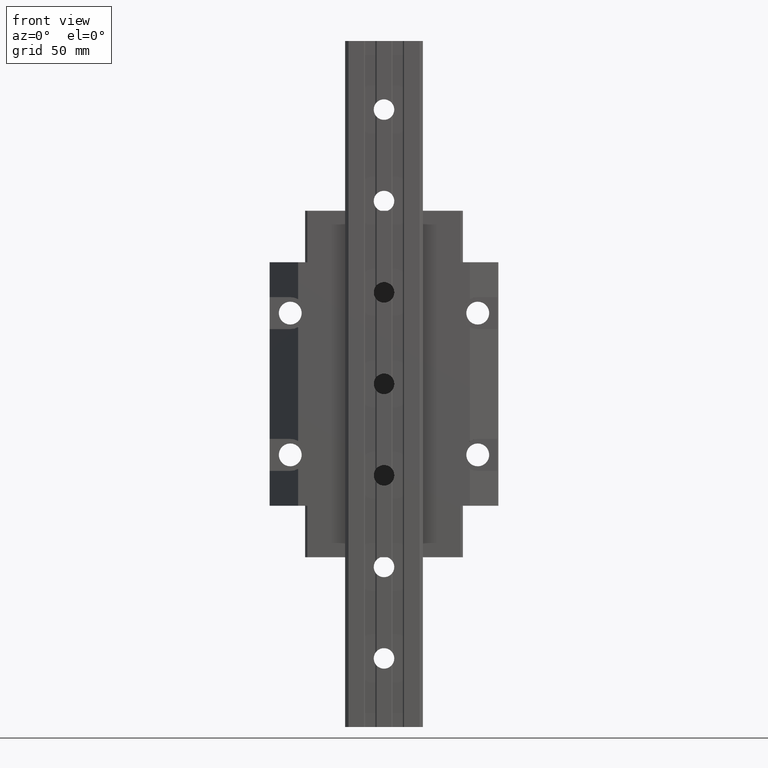
[diagram: clean part render]
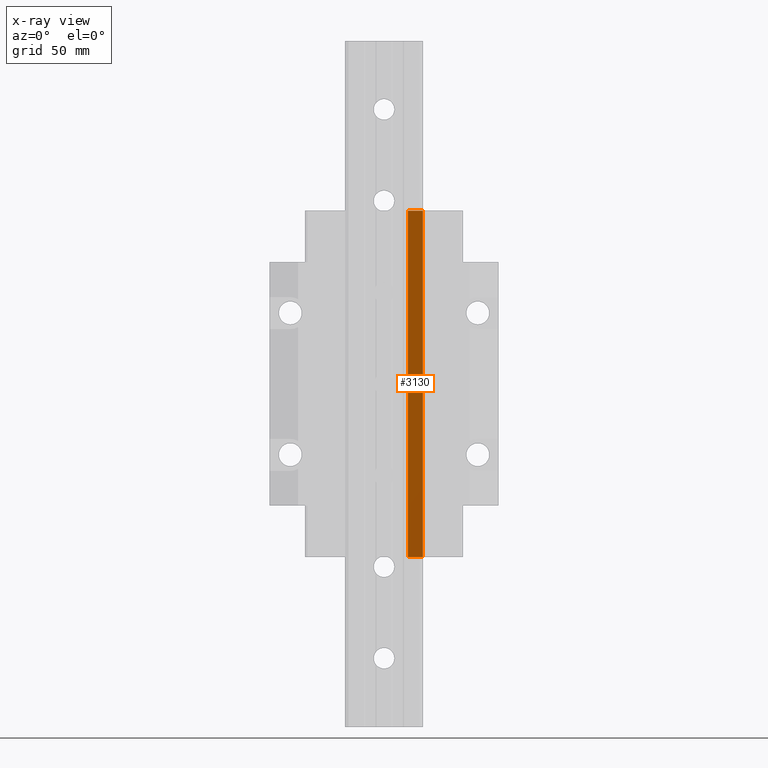
[diagram: x-ray — body ghosted, one internal face saturated and labeled with its STEP entity id]
A machine part, front view, then the same camera in x-ray: the body is ghosted and one INTERNAL B-rep face — a face not visible from any outside direction — is saturated and labeled: STEP entity #3130.
In plain terms, the highlighted planar face has unit normal (-0.7071, -0.7071, 0).
Its self-contained STEP definition (entity closure, byte-faithful):
#861=DIRECTION('',(-7.071067816334E-1,7.071067807397E-1,0.E0));
#862=VECTOR('',#861,9.192388149617E0);
#863=CARTESIAN_POINT('',(1.7E1,7.810000002104E0,7.575E1));
#864=LINE('',#863,#862);
#943=DIRECTION('',(0.E0,0.E0,-1.E0));
#944=VECTOR('',#943,1.515E2);
#945=CARTESIAN_POINT('',(1.7E1,7.810000002104E0,7.575E1));
#946=LINE('',#945,#944);
#947=DIRECTION('',(0.E0,0.E0,-1.E0));
#948=VECTOR('',#947,1.515E2);
#949=CARTESIAN_POINT('',(1.05E1,1.430999999389E1,7.575E1));
#950=LINE('',#949,#948);
#1067=DIRECTION('',(7.071067816334E-1,-7.071067807397E-1,0.E0));
#1068=VECTOR('',#1067,9.192388149617E0);
#1069=CARTESIAN_POINT('',(1.05E1,1.430999999389E1,-7.575E1));
#1070=LINE('',#1069,#1068);
#1697=CARTESIAN_POINT('',(1.05E1,1.430999999389E1,-7.575E1));
#1698=VERTEX_POINT('',#1697);
#1699=CARTESIAN_POINT('',(1.7E1,7.810000002104E0,-7.575E1));
#1700=VERTEX_POINT('',#1699);
#1800=CARTESIAN_POINT('',(1.7E1,7.810000002104E0,7.575E1));
#1801=VERTEX_POINT('',#1800);
#1802=CARTESIAN_POINT('',(1.05E1,1.430999999389E1,7.575E1));
#1803=VERTEX_POINT('',#1802);
#3117=CARTESIAN_POINT('',(1.05E1,1.430999999389E1,-5.325E1));
#3118=DIRECTION('',(-7.071067807397E-1,-7.071067816334E-1,0.E0));
#3119=DIRECTION('',(7.071067816334E-1,-7.071067807397E-1,0.E0));
#3120=AXIS2_PLACEMENT_3D('',#3117,#3118,#3119);
#3121=PLANE('',#3120);
#3123=ORIENTED_EDGE('',*,*,#3122,.F.);
#3124=ORIENTED_EDGE('',*,*,#3065,.F.);
#3125=ORIENTED_EDGE('',*,*,#3108,.T.);
#3127=ORIENTED_EDGE('',*,*,#3126,.F.);
#3128=EDGE_LOOP('',(#3123,#3124,#3125,#3127));
#3129=FACE_OUTER_BOUND('',#3128,.F.);
#3130=ADVANCED_FACE('',(#3129),#3121,.T.);
#3065=EDGE_CURVE('',#1801,#1803,#864,.T.);
#3108=EDGE_CURVE('',#1801,#1700,#946,.T.);
#3122=EDGE_CURVE('',#1803,#1698,#950,.T.);
#3126=EDGE_CURVE('',#1698,#1700,#1070,.T.);